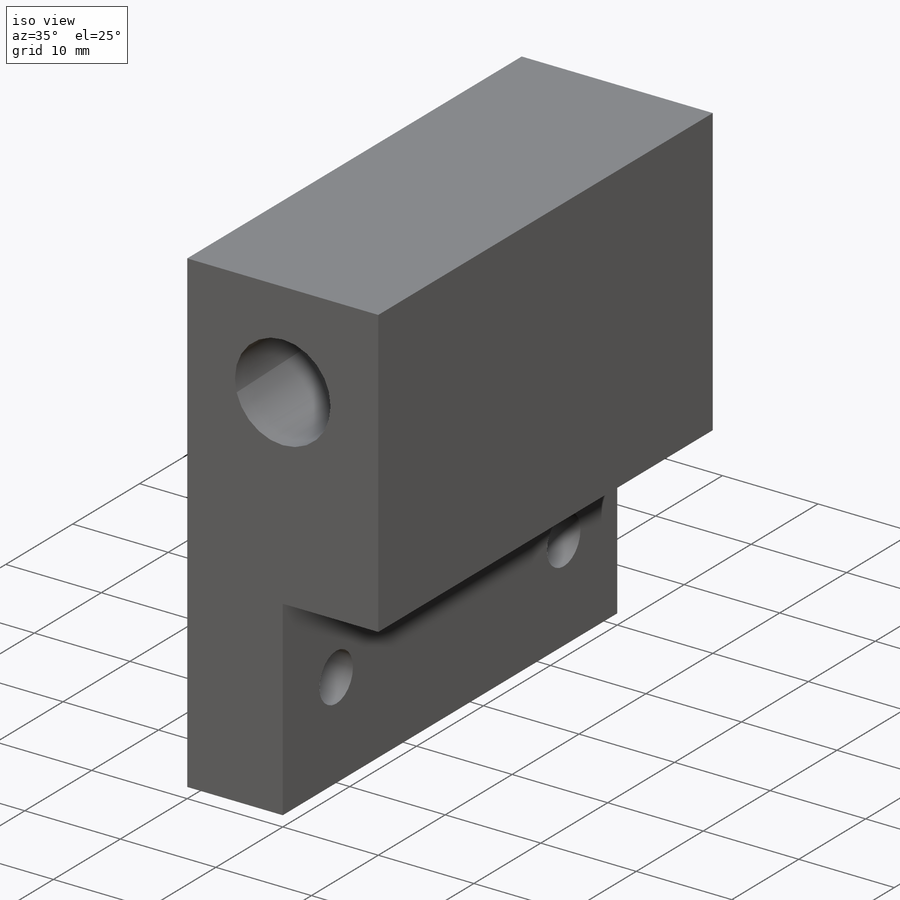
[diagram: iso view]
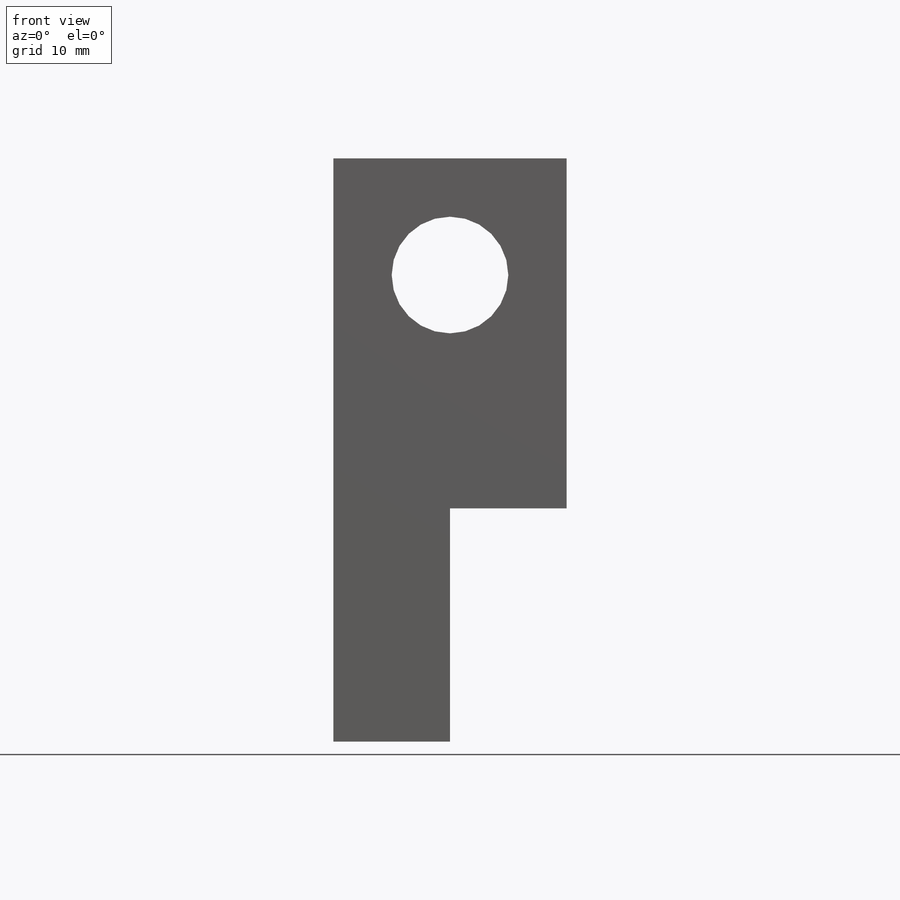
[diagram: front view]
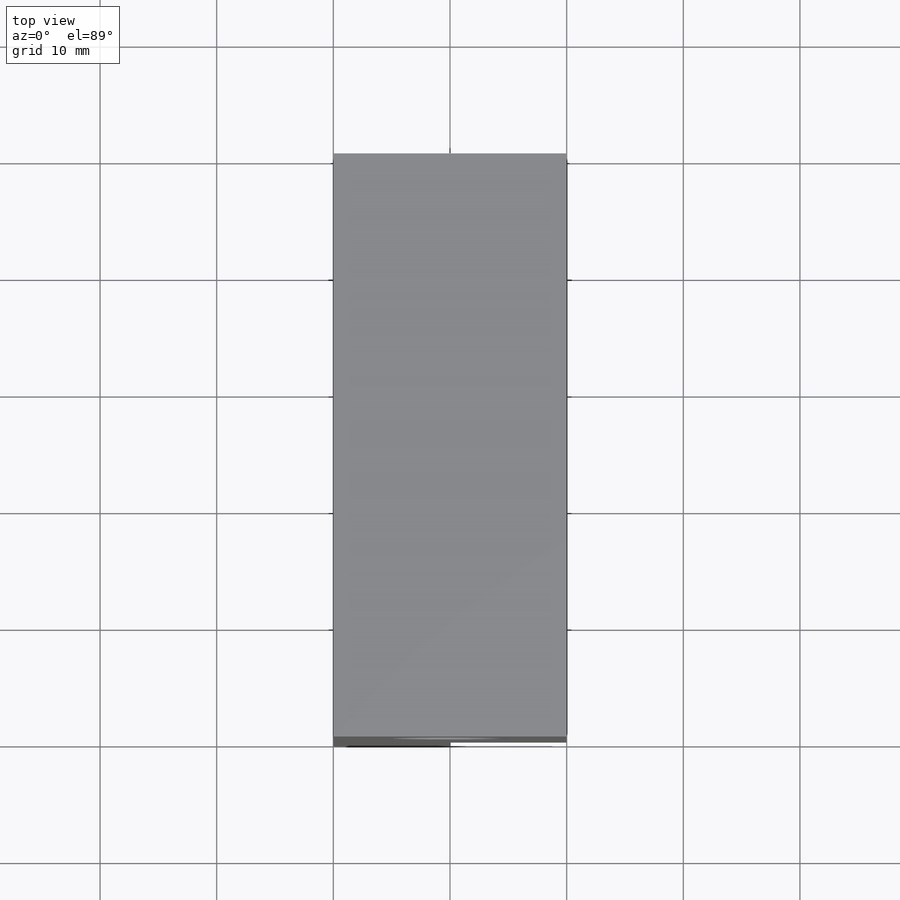
[diagram: top view]
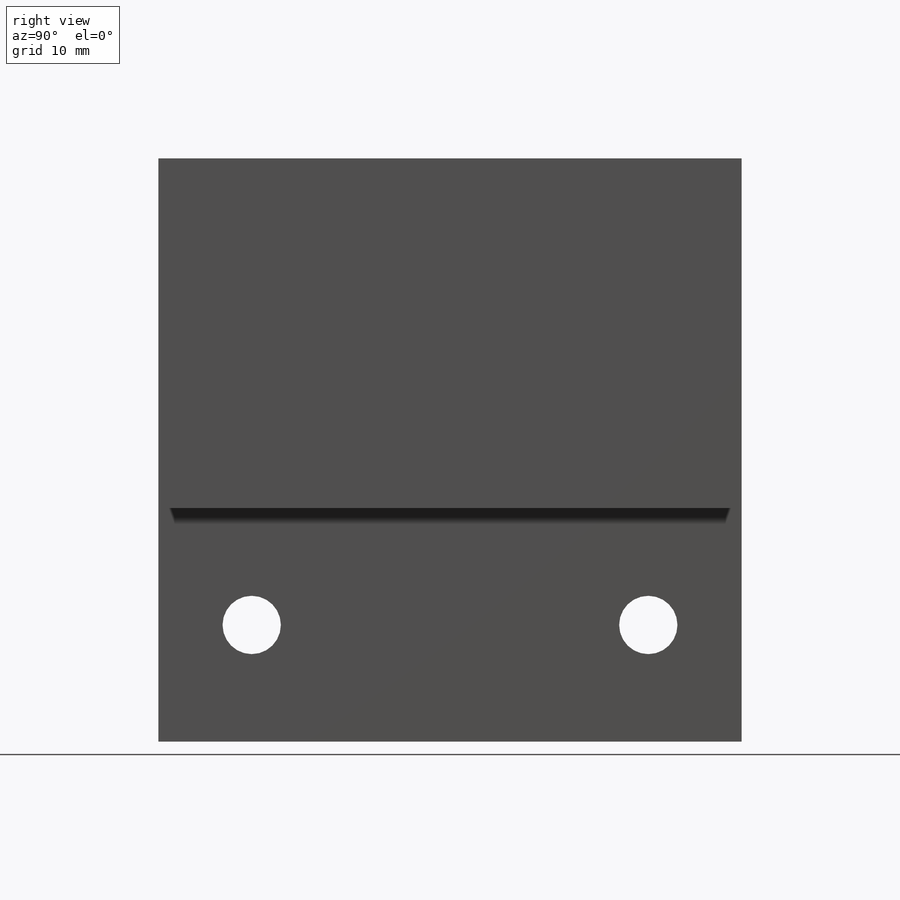
[diagram: right view]
SOLIDWORKS PART (.sldprt)
format: sldprt  version: not decoded by parser v0  size: 171,520 bytes
history: native  units: mm
features: sketch x4, plane x3, extrude x2, cut_extrude x2, material x1 (+8 scaffold rows collapsed)
feature tree (20):
  scaffold x8  (default folders/planes/origin — collapsed)
  material  "Matériau <non spécifié>"
  plane  "Plan de face"
  plane  "Plan de dessus"
  plane  "Plan de droite"
  sketch  "Esquisse1"  dims[D1=10.0mm D5=5.0mm D2=20.0mm D3=30.0mm D4=20.0mm D6=10.0mm]
  extrude  "Boss.-Extru.1"  Depth=15mm
  sketch  "Esquisse2"  dims[D1=20.0mm]
  extrude  "Boss.-Extru.2"  Depth=35mm
  sketch  "Esquisse3"  dims[D1=5.0mm D2=5.0mm D3=10.0mm D4=10.0mm D5=8.0mm D6=8.0mm]
  cut_extrude  "Enlèv. mat.-Extru.1"  Depth=30mm
  sketch  "Esquisse4"  dims[D1=20.0mm]
  cut_extrude  "Enlèv. mat.-Extru.2"  Depth=10mm
decode coverage: 8 of 8 modeling features carry decoded parameters
note: suppression state not decoded; provenance and decode notes live in map.json
